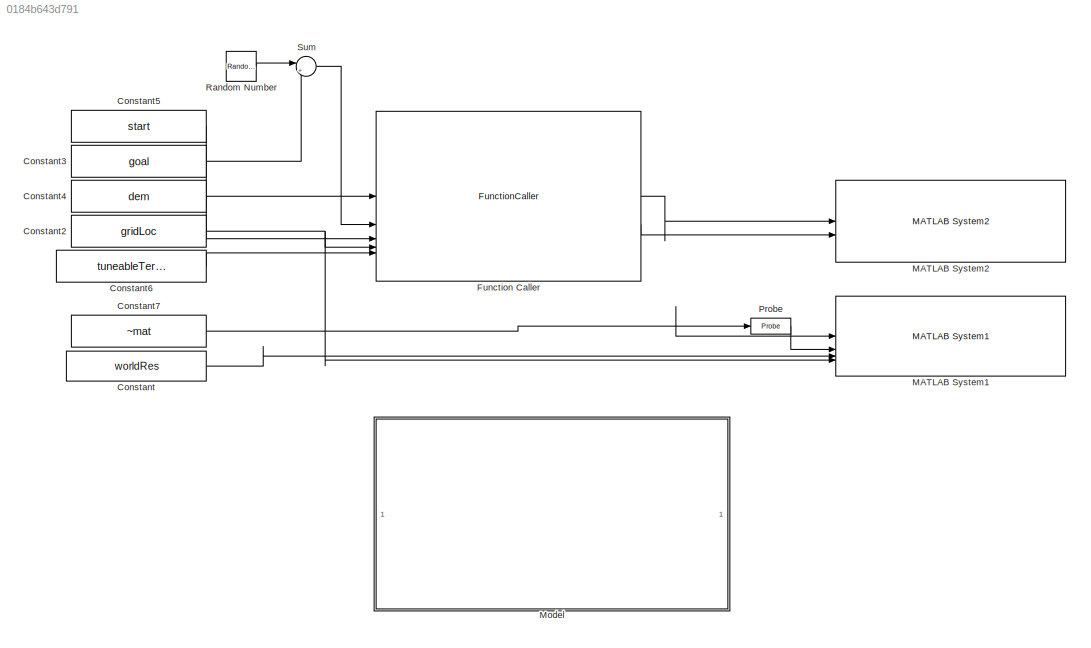
MODEL slx_0184b643d791
KIND model
CONFIG AbsTol = auto
CONFIG EnableMultiTasking = off
CONFIG FixedStep = auto
CONFIG InitFcn = globalPlanSetup
CONFIG MaxStep = auto
CONFIG MinStep = auto
CONFIG RelTol = 1e-3
CONFIG SampleTimeConstraint = Unconstrained
CONFIG SolverName = VariableStepAuto
CONFIG StartTime = 0.0
CONFIG StopTime = 10.0
BLOCK [Constant] Constant
  Value = worldRes
BLOCK [Constant] Constant2
  Value = gridLoc
BLOCK [Constant] Constant3
  Value = goal
BLOCK [Constant] Constant4
  Value = dem
BLOCK [Constant] Constant5
  Value = start
BLOCK [Constant] Constant6
  OutDataTypeStr = Bus: fsp_tunable_bus
  Value = tuneableTerrainAwareParams
BLOCK [Constant] Constant7
  Value = ~mat
BLOCK [FunctionCaller] Function Caller
  FunctionPrototype = [globalPath,nRefPathRows] = planGlobal(start,goal,dem,gridLoc,tuneableGlobalPlannerParams)
  InputArgumentSpecifications = <Enter example>
  OutputArgumentSpecifications = <Enter example>
BLOCK [Reference] MATLAB System1  REF=roshelperlib/MATLAB System1  (lib defined in slx_3328ea0e13a5)
  SourceBlock = roshelperlib/MATLAB System1
  SourceType = exampleHelperMapVisualizerSys
BLOCK [Reference] MATLAB System2  REF=roshelperlib/MATLAB System2  (lib defined in slx_3328ea0e13a5)
  SourceBlock = roshelperlib/MATLAB System2
  SourceType = exampleHelperPathVisualizerSys
BLOCK [ModelReference] Model
  ModelNameDialog = extractLocalMap_simfcnsvr.slx
  ModelReferenceVersion = 2.0
  ScheduleRates = on
BLOCK [Probe] Probe
  ProbeComplexSignal = off
  ProbeSampleTime = off
  ProbeSignalDimensions = on
  ProbeWidth = off
BLOCK [RandomNumber] Random Number
  Mean = [0 0 0]
  SampleTime = 0.1
  Variance = 10
BLOCK [Sum] Sum
  Inputs = |++
NET Constant2:1 -> Function Caller:4, MATLAB System1:4
LINE Constant3:1 -> Sum:2
LINE Constant4:1 -> Function Caller:3
LINE Constant5:1 -> Function Caller:1
LINE Constant6:1 -> Function Caller:5
NET Constant7:1 -> MATLAB System1:1, Probe:1
LINE Constant:1 -> MATLAB System1:3
LINE Function Caller:1 -> MATLAB System2:1
LINE Function Caller:2 -> MATLAB System2:2
LINE Probe:1 -> MATLAB System1:2
LINE Random Number:1 -> Sum:1
LINE Sum:1 -> Function Caller:2
note: NET lines group one-source signal fan-out (src -> all destinations, sorted); 1:1 wires keep LINE
